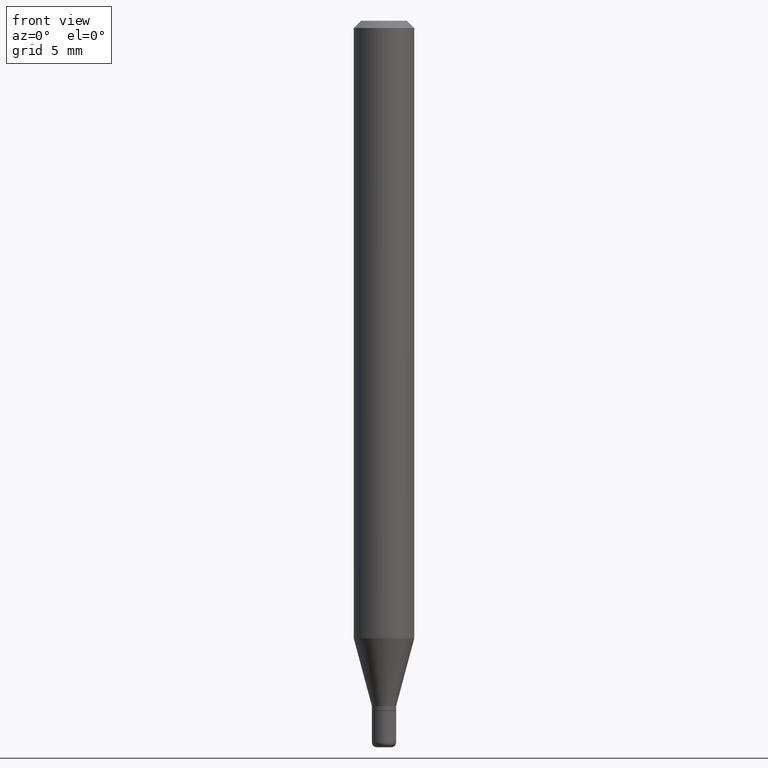
[diagram: clean part render]
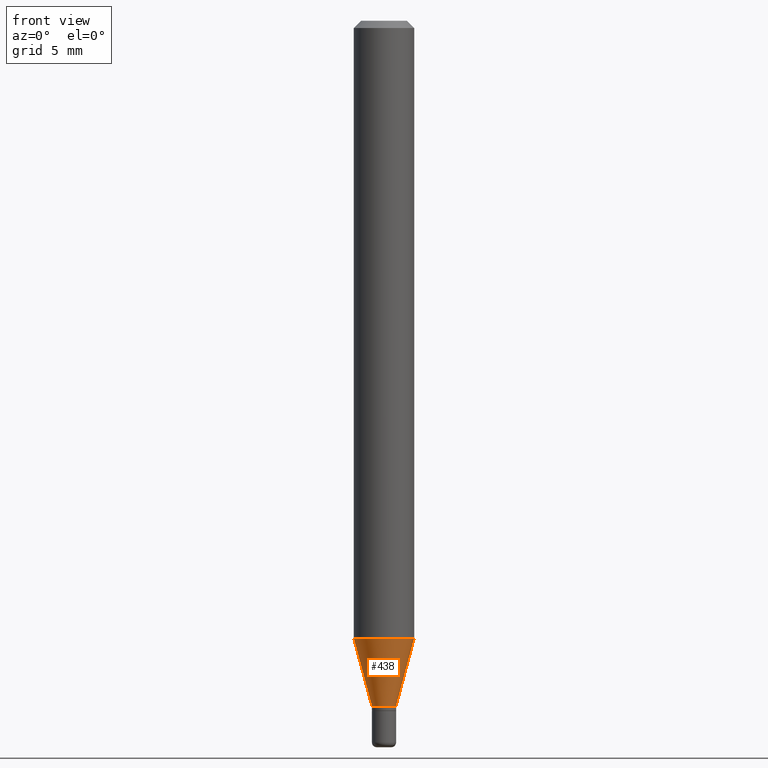
[diagram: same view with one face highlighted and labeled with its STEP entity id]
A machine part, front view. The second image highlights one B-rep face of the part: STEP entity #438.
In plain terms, the highlighted conical surface has half-angle 15 deg.
Its self-contained STEP definition (entity closure, byte-faithful):
#6 = AXIS2_PLACEMENT_3D ( 'NONE', #204, #56, #365 ) ;
#8 = VERTEX_POINT ( 'NONE', #225 ) ;
#36 = CARTESIAN_POINT ( 'NONE',  ( 3.460338360751968441E-29, -4.940446094463050737E-15, -1.415000000000000036 ) ) ;
#38 = CARTESIAN_POINT ( 'NONE',  ( 0.06250000000000000000, -4.888241796184395369E-15, -1.275048094716166869 ) ) ;
#44 = DIRECTION ( 'NONE',  ( 1.000000000000000000, -6.982962677686262766E-15, 0.000000000000000000 ) ) ;
#56 = DIRECTION ( 'NONE',  ( -2.445468806185136597E-29, 3.491481338843145583E-15, 1.000000000000000000 ) ) ;
#72 = EDGE_CURVE ( 'NONE', #175, #8, #300, .T. ) ;
#75 = CARTESIAN_POINT ( 'NONE',  ( 3.118090342014177952E-29, -4.451806628829005278E-15, -1.275048094716166869 ) ) ;
#79 = AXIS2_PLACEMENT_3D ( 'NONE', #36, #156, #307 ) ;
#92 = ORIENTED_EDGE ( 'NONE', *, *, #298, .F. ) ;
#113 = VERTEX_POINT ( 'NONE', #38 ) ;
#129 = EDGE_LOOP ( 'NONE', ( #403, #422, #385, #92 ) ) ;
#156 = DIRECTION ( 'NONE',  ( -2.445468806185136597E-29, 3.491481338843145583E-15, 1.000000000000000000 ) ) ;
#171 = CARTESIAN_POINT ( 'NONE',  ( 0.02499999999999998057, -5.115020161405207405E-15, -1.415000000000000036 ) ) ;
#175 = VERTEX_POINT ( 'NONE', #430 ) ;
#187 = DIRECTION ( 'NONE',  ( -2.445468806185136597E-29, 3.491481338843145583E-15, 1.000000000000000000 ) ) ;
#204 = CARTESIAN_POINT ( 'NONE',  ( 3.460338360751968441E-29, -4.940446094463050737E-15, -1.415000000000000036 ) ) ;
#209 = VERTEX_POINT ( 'NONE', #355 ) ;
#218 = VECTOR ( 'NONE', #286, 39.37007874015748143 ) ;
#221 = CARTESIAN_POINT ( 'NONE',  ( -0.02499999999999998057, -4.762810410523025533E-15, -1.415000000000000036 ) ) ;
#225 = CARTESIAN_POINT ( 'NONE',  ( -0.06250000000000000000, -4.007717418978941084E-15, -1.275048094716166869 ) ) ;
#253 = EDGE_CURVE ( 'NONE', #175, #209, #487, .T. ) ;
#261 = CONICAL_SURFACE ( 'NONE', #6, 0.02499999999999998057, 0.2617993877991491858 ) ;
#286 = DIRECTION ( 'NONE',  ( 0.2588190451025205174, 1.565188264969628476E-15, 0.9659258262890684232 ) ) ;
#298 = EDGE_CURVE ( 'NONE', #8, #113, #514, .T. ) ;
#300 = LINE ( 'NONE', #221, #348 ) ;
#307 = DIRECTION ( 'NONE',  ( 1.000000000000000000, -6.982962677686260400E-15, 0.000000000000000000 ) ) ;
#320 = AXIS2_PLACEMENT_3D ( 'NONE', #75, #187, #44 ) ;
#343 = EDGE_CURVE ( 'NONE', #209, #113, #449, .T. ) ;
#348 = VECTOR ( 'NONE', #381, 39.37007874015748143 ) ;
#355 = CARTESIAN_POINT ( 'NONE',  ( 0.02499999999999998057, -5.115020161405207405E-15, -1.415000000000000036 ) ) ;
#365 = DIRECTION ( 'NONE',  ( 1.000000000000000000, -6.982962677686260400E-15, 0.000000000000000000 ) ) ;
#381 = DIRECTION ( 'NONE',  ( -0.2588190451025205174, 5.211531920934544731E-15, 0.9659258262890684232 ) ) ;
#385 = ORIENTED_EDGE ( 'NONE', *, *, #343, .T. ) ;
#403 = ORIENTED_EDGE ( 'NONE', *, *, #72, .F. ) ;
#404 = FACE_OUTER_BOUND ( 'NONE', #129, .T. ) ;
#422 = ORIENTED_EDGE ( 'NONE', *, *, #253, .T. ) ;
#430 = CARTESIAN_POINT ( 'NONE',  ( -0.02499999999999998057, -4.385263914750983308E-15, -1.415000000000000036 ) ) ;
#438 = ADVANCED_FACE ( 'NONE', ( #404 ), #261, .T. ) ;
#449 = LINE ( 'NONE', #171, #218 ) ;
#487 = CIRCLE ( 'NONE', #79, 0.02499999999999998057 ) ;
#514 = CIRCLE ( 'NONE', #320, 0.06250000000000000000 ) ;